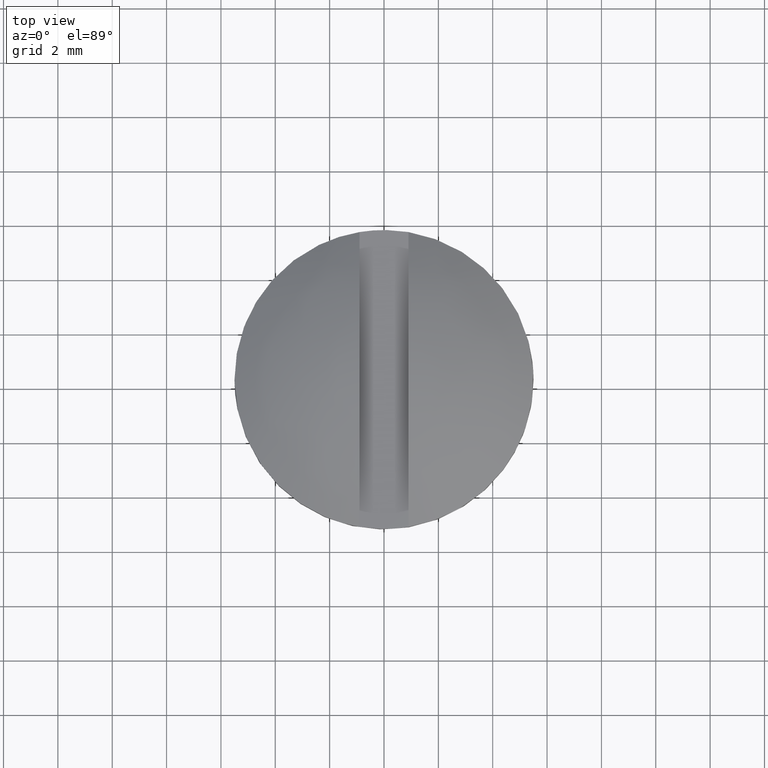
[diagram: clean part render]
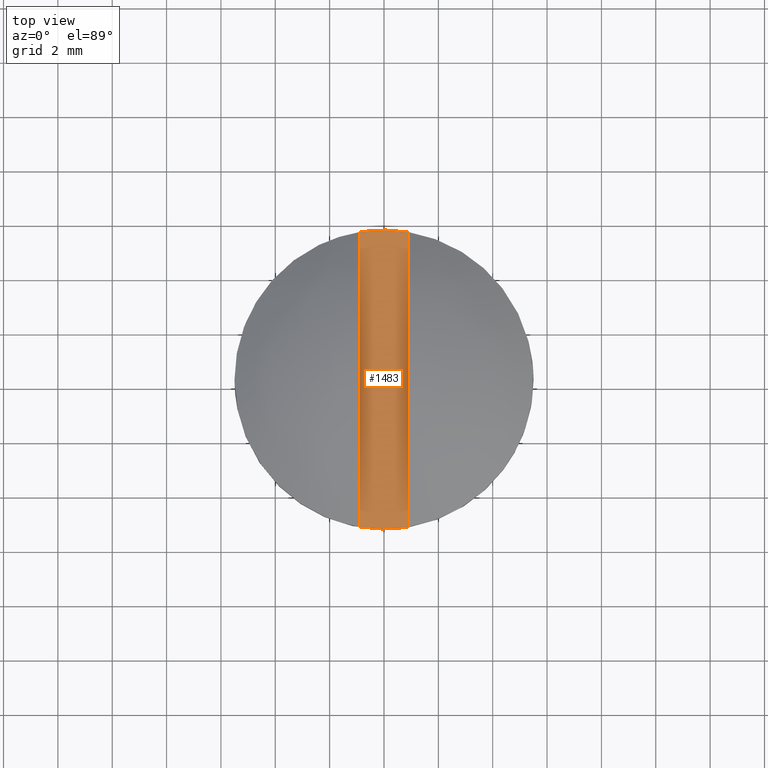
[diagram: same view with one face highlighted and labeled with its STEP entity id]
A machine part, top view. The second image highlights one B-rep face of the part: STEP entity #1483.
In plain terms, the highlighted face is a freeform B-spline surface patch.
Its self-contained STEP definition (entity closure, byte-faithful):
#1287=CARTESIAN_POINT('',(-0.899999999999988,5.425863986500220,20.500000000000000));
#1288=VERTEX_POINT('',#1287);
#1294=CARTESIAN_POINT('',(0.900000000000000,5.425863986500210,20.500000000000000));
#1295=VERTEX_POINT('',#1294);
#1296=CARTESIAN_POINT('',(0.900000000000002,5.425863986500214,20.500000000000000));
#1297=CARTESIAN_POINT('',(6.071532E-015,5.575148967107047,20.500000000000000));
#1298=CARTESIAN_POINT('',(-0.899999999999985,5.425863986500217,20.500000000000000));
#1306=(BOUNDED_CURVE()B_SPLINE_CURVE(2,(#1296,#1297,#1298),.UNSPECIFIED.,.F.,.U.)CURVE()GEOMETRIC_REPRESENTATION_ITEM()QUASI_UNIFORM_CURVE()RATIONAL_B_SPLINE_CURVE((1.0,0.986520724818221,1.0))REPRESENTATION_ITEM(''));
#1307=EDGE_CURVE('',#1295,#1288,#1306,.T.);
#1418=CARTESIAN_POINT('',(0.900000000000000,-5.425863986500210,20.500000000000000));
#1419=VERTEX_POINT('',#1418);
#1425=CARTESIAN_POINT('',(-0.899999999999987,-5.425863986500220,20.500000000000000));
#1426=VERTEX_POINT('',#1425);
#1427=CARTESIAN_POINT('',(-0.899999999999986,-5.425863986500216,20.500000000000000));
#1428=CARTESIAN_POINT('',(8.782038E-015,-5.575148967107047,20.500000000000000));
#1429=CARTESIAN_POINT('',(0.900000000000000,-5.425863986500215,20.500000000000000));
#1437=(BOUNDED_CURVE()B_SPLINE_CURVE(2,(#1427,#1428,#1429),.UNSPECIFIED.,.F.,.U.)CURVE()GEOMETRIC_REPRESENTATION_ITEM()QUASI_UNIFORM_CURVE()RATIONAL_B_SPLINE_CURVE((1.0,0.986520724818221,1.0))REPRESENTATION_ITEM(''));
#1438=EDGE_CURVE('',#1426,#1419,#1437,.T.);
#1464=CARTESIAN_POINT('',(-0.989909973183261,6.049086518758982,20.500000000000000));
#1465=CARTESIAN_POINT('',(0.989909908810257,6.049086518758982,20.500000000000000));
#1466=CARTESIAN_POINT('',(-0.989909973183261,-6.049086813801973,20.500000000000000));
#1467=CARTESIAN_POINT('',(0.989909908810257,-6.049086813801973,20.500000000000000));
#1468=B_SPLINE_SURFACE_WITH_KNOTS('',1,1,((#1464,#1466),(#1465,#1467)),.UNSPECIFIED.,.F.,.F.,.U.,(2,2),(2,2),(0.0,1.979819881993519),(0.0,12.098173332560950),.UNSPECIFIED.);
#1469=CARTESIAN_POINT('',(-0.899999999999987,-5.425863986500220,20.500000000000000));
#1470=CARTESIAN_POINT('',(-0.899999999999988,5.425863986500220,20.500000000000000));
#1471=QUASI_UNIFORM_CURVE('',1,(#1469,#1470),.UNSPECIFIED.,.F.,.U.);
#1472=EDGE_CURVE('',#1426,#1288,#1471,.T.);
#1473=ORIENTED_EDGE('',*,*,#1472,.F.);
#1474=ORIENTED_EDGE('',*,*,#1438,.T.);
#1475=CARTESIAN_POINT('',(0.900000000000000,5.425863986500210,20.500000000000000));
#1476=CARTESIAN_POINT('',(0.900000000000000,-5.425863986500210,20.500000000000000));
#1477=QUASI_UNIFORM_CURVE('',1,(#1475,#1476),.UNSPECIFIED.,.F.,.U.);
#1478=EDGE_CURVE('',#1295,#1419,#1477,.T.);
#1479=ORIENTED_EDGE('',*,*,#1478,.F.);
#1480=ORIENTED_EDGE('',*,*,#1307,.T.);
#1481=EDGE_LOOP('',(#1473,#1474,#1479,#1480));
#1482=FACE_OUTER_BOUND('',#1481,.T.);
#1483=ADVANCED_FACE('',(#1482),#1468,.F.);